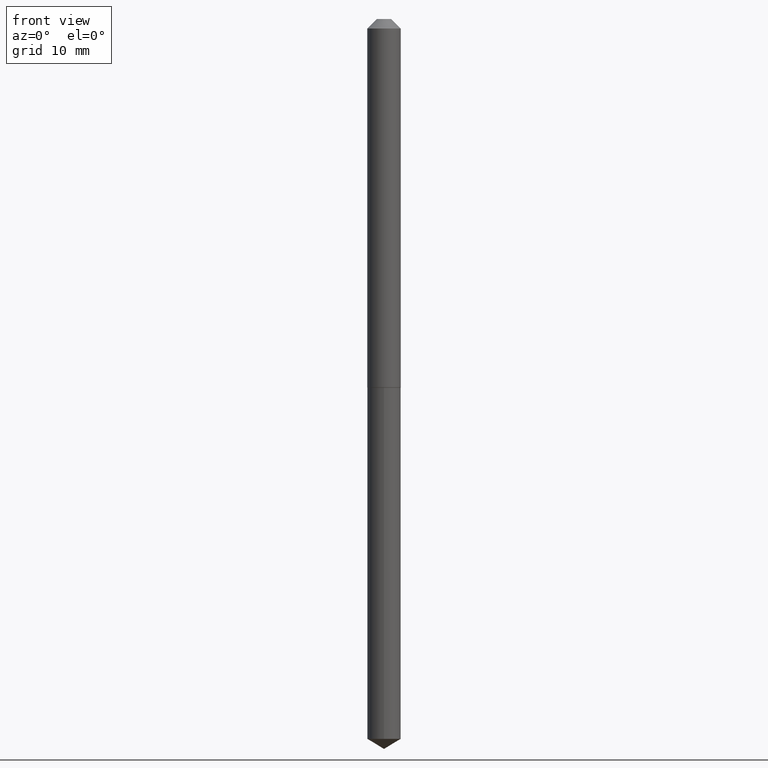
[diagram: clean part render]
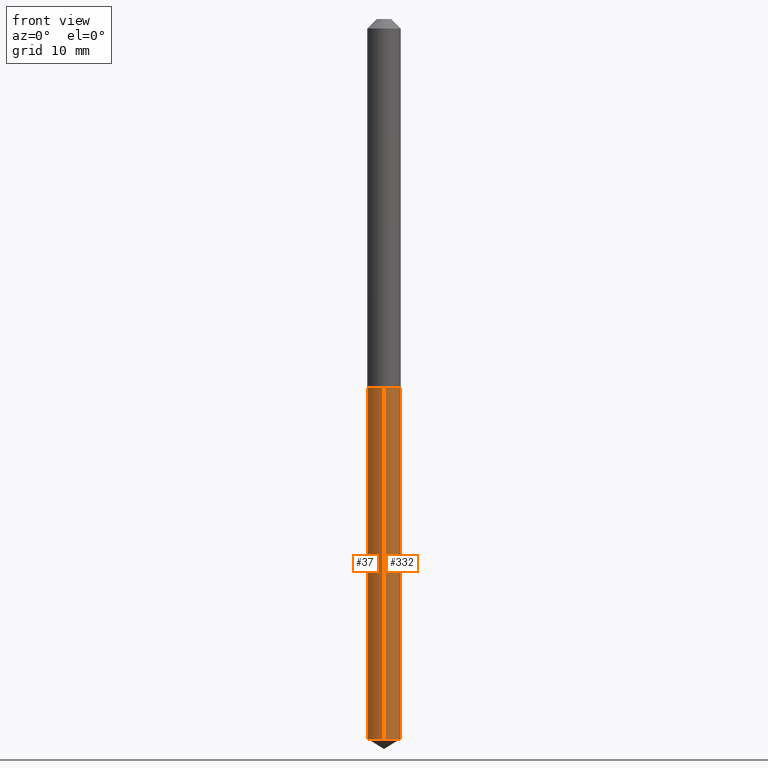
[diagram: same view with one multi-face feature highlighted, each face labeled with its STEP entity id]
A machine part, front view. The highlighted faces form ONE feature: a constant-radius fillet chain: 2 tangent blend faces with common blend radius 1.3995 mm. The faces share edges in the B-rep.
Their STEP definitions:
[1] entity #37 (Cylinder):
#11 = DIRECTION ( 'NONE',  ( -2.445510340889722322E-29, 3.491421858782170244E-15, 1.000000000000000000 ) ) ;
#12 = CARTESIAN_POINT ( 'NONE',  ( 2.965375474380097357E-29, -4.233770271481199271E-15, -1.212600000000000344 ) ) ;
#13 = AXIS2_PLACEMENT_3D ( 'NONE', #178, #27, #117 ) ;
#25 = DIRECTION ( 'NONE',  ( -2.445510340889722322E-29, 3.491421858782170244E-15, 1.000000000000000000 ) ) ;
#27 = DIRECTION ( 'NONE',  ( -2.445510340889722322E-29, 3.491421858782170244E-15, 1.000000000000000000 ) ) ;
#32 = VERTEX_POINT ( 'NONE', #166 ) ;
#35 = AXIS2_PLACEMENT_3D ( 'NONE', #12, #225, #368 ) ;
#37 = ADVANCED_FACE ( 'NONE', ( #316 ), #282, .T. ) ;
#50 = CARTESIAN_POINT ( 'NONE',  ( 2.965375474380097357E-29, -4.233770271481199271E-15, -1.212600000000000344 ) ) ;
#52 = DIRECTION ( 'NONE',  ( -2.445510340889722322E-29, 3.491421858782170244E-15, 1.000000000000000000 ) ) ;
#56 = LINE ( 'NONE', #292, #261 ) ;
#60 = VERTEX_POINT ( 'NONE', #168 ) ;
#85 = LINE ( 'NONE', #325, #353 ) ;
#88 = AXIS2_PLACEMENT_3D ( 'NONE', #50, #11, #373 ) ;
#92 = ORIENTED_EDGE ( 'NONE', *, *, #266, .T. ) ;
#117 = DIRECTION ( 'NONE',  ( -6.982962677686265922E-15, -1.000000000000000000, 4.957981839681057834E-15 ) ) ;
#166 = CARTESIAN_POINT ( 'NONE',  ( -3.847612435404836586E-16, -0.05510000000000424281, -1.212600000000000122 ) ) ;
#168 = CARTESIAN_POINT ( 'NONE',  ( -3.847612435404554569E-16, -0.05510000000000828818, -2.368492579891581684 ) ) ;
#172 = CARTESIAN_POINT ( 'NONE',  ( 3.915090474038731567E-16, 0.05509999999999173198, -2.368492579891582128 ) ) ;
#178 = CARTESIAN_POINT ( 'NONE',  ( 5.792122731462659199E-29, -8.269478891318782780E-15, -2.368492579891582128 ) ) ;
#179 = CARTESIAN_POINT ( 'NONE',  ( 3.915090474038733046E-16, 0.05509999999999576348, -1.212600000000000566 ) ) ;
#183 = EDGE_LOOP ( 'NONE', ( #304, #92, #247, #298 ) ) ;
#185 = VERTEX_POINT ( 'NONE', #172 ) ;
#196 = EDGE_CURVE ( 'NONE', #60, #32, #56, .T. ) ;
#207 = VERTEX_POINT ( 'NONE', #179 ) ;
#208 = CIRCLE ( 'NONE', #35, 0.05510000000000000314 ) ;
#225 = DIRECTION ( 'NONE',  ( -2.445510340889722322E-29, 3.491421858782170244E-15, 1.000000000000000000 ) ) ;
#243 = CIRCLE ( 'NONE', #13, 0.05510000000000000314 ) ;
#247 = ORIENTED_EDGE ( 'NONE', *, *, #196, .T. ) ;
#261 = VECTOR ( 'NONE', #52, 39.37007874015748143 ) ;
#266 = EDGE_CURVE ( 'NONE', #185, #60, #243, .T. ) ;
#282 = CYLINDRICAL_SURFACE ( 'NONE', #88, 0.05510000000000000314 ) ;
#292 = CARTESIAN_POINT ( 'NONE',  ( -3.847612435404836586E-16, -0.05510000000000424281, -1.212600000000000122 ) ) ;
#298 = ORIENTED_EDGE ( 'NONE', *, *, #389, .F. ) ;
#304 = ORIENTED_EDGE ( 'NONE', *, *, #330, .F. ) ;
#316 = FACE_OUTER_BOUND ( 'NONE', #183, .T. ) ;
#325 = CARTESIAN_POINT ( 'NONE',  ( 3.915090474038448563E-16, 0.05509999999999577042, -1.212600000000000566 ) ) ;
#330 = EDGE_CURVE ( 'NONE', #185, #207, #85, .T. ) ;
#353 = VECTOR ( 'NONE', #25, 39.37007874015748143 ) ;
#368 = DIRECTION ( 'NONE',  ( -6.982962677686265922E-15, -1.000000000000000000, 2.478990919840528917E-15 ) ) ;
#373 = DIRECTION ( 'NONE',  ( -6.982962677686265922E-15, -1.000000000000000000, 2.478990919840528917E-15 ) ) ;
#389 = EDGE_CURVE ( 'NONE', #207, #32, #208, .T. ) ;
[2] entity #332 (Cylinder):
#21 = CARTESIAN_POINT ( 'NONE',  ( 2.965375474380097357E-29, -4.233770271481199271E-15, -1.212600000000000344 ) ) ;
#25 = DIRECTION ( 'NONE',  ( -2.445510340889722322E-29, 3.491421858782170244E-15, 1.000000000000000000 ) ) ;
#29 = DIRECTION ( 'NONE',  ( -2.445510340889722322E-29, 3.491421858782170244E-15, 1.000000000000000000 ) ) ;
#31 = ORIENTED_EDGE ( 'NONE', *, *, #231, .F. ) ;
#32 = VERTEX_POINT ( 'NONE', #166 ) ;
#52 = DIRECTION ( 'NONE',  ( -2.445510340889722322E-29, 3.491421858782170244E-15, 1.000000000000000000 ) ) ;
#56 = LINE ( 'NONE', #292, #261 ) ;
#60 = VERTEX_POINT ( 'NONE', #168 ) ;
#85 = LINE ( 'NONE', #325, #353 ) ;
#103 = DIRECTION ( 'NONE',  ( -6.982962677686265922E-15, -1.000000000000000000, 2.478990919840528917E-15 ) ) ;
#107 = ORIENTED_EDGE ( 'NONE', *, *, #196, .F. ) ;
#115 = CIRCLE ( 'NONE', #194, 0.05510000000000000314 ) ;
#122 = ORIENTED_EDGE ( 'NONE', *, *, #330, .T. ) ;
#145 = AXIS2_PLACEMENT_3D ( 'NONE', #328, #358, #199 ) ;
#146 = FACE_OUTER_BOUND ( 'NONE', #151, .T. ) ;
#151 = EDGE_LOOP ( 'NONE', ( #182, #122, #31, #107 ) ) ;
#166 = CARTESIAN_POINT ( 'NONE',  ( -3.847612435404836586E-16, -0.05510000000000424281, -1.212600000000000122 ) ) ;
#168 = CARTESIAN_POINT ( 'NONE',  ( -3.847612435404554569E-16, -0.05510000000000828818, -2.368492579891581684 ) ) ;
#172 = CARTESIAN_POINT ( 'NONE',  ( 3.915090474038731567E-16, 0.05509999999999173198, -2.368492579891582128 ) ) ;
#177 = AXIS2_PLACEMENT_3D ( 'NONE', #272, #29, #103 ) ;
#179 = CARTESIAN_POINT ( 'NONE',  ( 3.915090474038733046E-16, 0.05509999999999576348, -1.212600000000000566 ) ) ;
#182 = ORIENTED_EDGE ( 'NONE', *, *, #317, .T. ) ;
#185 = VERTEX_POINT ( 'NONE', #172 ) ;
#194 = AXIS2_PLACEMENT_3D ( 'NONE', #21, #263, #234 ) ;
#196 = EDGE_CURVE ( 'NONE', #60, #32, #56, .T. ) ;
#199 = DIRECTION ( 'NONE',  ( -6.982962677686265922E-15, -1.000000000000000000, 4.957981839681057834E-15 ) ) ;
#207 = VERTEX_POINT ( 'NONE', #179 ) ;
#231 = EDGE_CURVE ( 'NONE', #32, #207, #115, .T. ) ;
#234 = DIRECTION ( 'NONE',  ( -6.982962677686265922E-15, -1.000000000000000000, 2.478990919840528917E-15 ) ) ;
#238 = CIRCLE ( 'NONE', #145, 0.05510000000000000314 ) ;
#261 = VECTOR ( 'NONE', #52, 39.37007874015748143 ) ;
#263 = DIRECTION ( 'NONE',  ( -2.445510340889722322E-29, 3.491421858782170244E-15, 1.000000000000000000 ) ) ;
#270 = CYLINDRICAL_SURFACE ( 'NONE', #177, 0.05510000000000000314 ) ;
#272 = CARTESIAN_POINT ( 'NONE',  ( 2.965375474380097357E-29, -4.233770271481199271E-15, -1.212600000000000344 ) ) ;
#292 = CARTESIAN_POINT ( 'NONE',  ( -3.847612435404836586E-16, -0.05510000000000424281, -1.212600000000000122 ) ) ;
#317 = EDGE_CURVE ( 'NONE', #60, #185, #238, .T. ) ;
#325 = CARTESIAN_POINT ( 'NONE',  ( 3.915090474038448563E-16, 0.05509999999999577042, -1.212600000000000566 ) ) ;
#328 = CARTESIAN_POINT ( 'NONE',  ( 5.792122731462659199E-29, -8.269478891318782780E-15, -2.368492579891582128 ) ) ;
#330 = EDGE_CURVE ( 'NONE', #185, #207, #85, .T. ) ;
#332 = ADVANCED_FACE ( 'NONE', ( #146 ), #270, .T. ) ;
#353 = VECTOR ( 'NONE', #25, 39.37007874015748143 ) ;
#358 = DIRECTION ( 'NONE',  ( -2.445510340889722322E-29, 3.491421858782170244E-15, 1.000000000000000000 ) ) ;